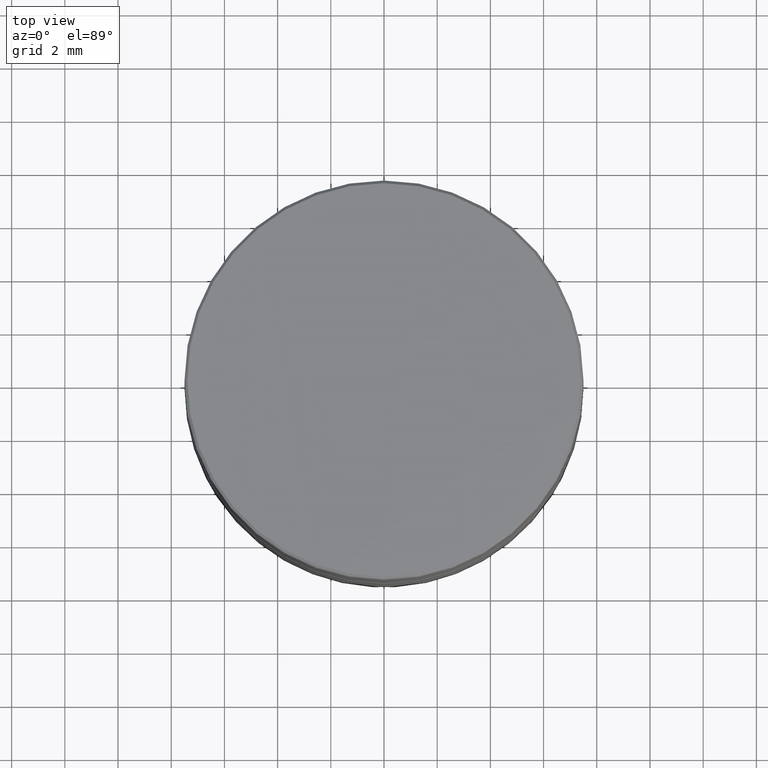
[diagram: clean part render]
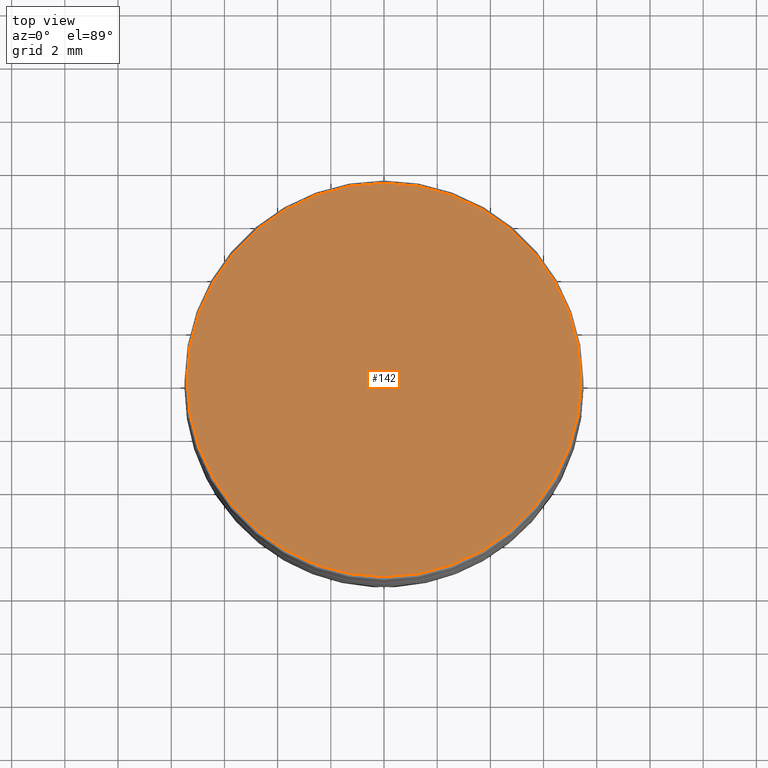
[diagram: same view with one face highlighted and labeled with its STEP entity id]
A machine part, top view. The second image highlights one B-rep face of the part: STEP entity #142.
In plain terms, the highlighted planar face has unit normal (0, -0, 1).
Its self-contained STEP definition (entity closure, byte-faithful):
#53 = CARTESIAN_POINT ( 'NONE',  ( 0.000000000000000000, 0.000000000000000000, 0.000000000000000000 ) ) ;
#88 = AXIS2_PLACEMENT_3D ( 'NONE', #53, #564, #724 ) ;
#96 = CARTESIAN_POINT ( 'NONE',  ( 0.000000000000000000, 0.000000000000000000, 0.000000000000000000 ) ) ;
#119 = DIRECTION ( 'NONE',  ( 1.000000000000000000, 0.000000000000000000, 0.000000000000000000 ) ) ;
#142 = ADVANCED_FACE ( 'NONE', ( #556 ), #162, .T. ) ;
#162 = PLANE ( 'NONE',  #1373 ) ;
#302 = CARTESIAN_POINT ( 'NONE',  ( 0.000000000000000000, 0.000000000000000000, 0.000000000000000000 ) ) ;
#409 = CARTESIAN_POINT ( 'NONE',  ( -7.399999999999994138, 0.000000000000000000, 0.000000000000000000 ) ) ;
#488 = CARTESIAN_POINT ( 'NONE',  ( 7.399999999999994138, 9.123618653647777215E-16, 0.000000000000000000 ) ) ;
#489 = DIRECTION ( 'NONE',  ( -0.000000000000000000, -0.000000000000000000, 1.000000000000000000 ) ) ;
#541 = VERTEX_POINT ( 'NONE', #409 ) ;
#556 = FACE_OUTER_BOUND ( 'NONE', #1114, .T. ) ;
#564 = DIRECTION ( 'NONE',  ( -0.000000000000000000, -0.000000000000000000, 1.000000000000000000 ) ) ;
#723 = CIRCLE ( 'NONE', #1170, 7.399999999999994138 ) ;
#724 = DIRECTION ( 'NONE',  ( 1.000000000000000000, 0.000000000000000000, 0.000000000000000000 ) ) ;
#818 = ORIENTED_EDGE ( 'NONE', *, *, #898, .T. ) ;
#828 = ORIENTED_EDGE ( 'NONE', *, *, #1597, .T. ) ;
#898 = EDGE_CURVE ( 'NONE', #541, #1257, #723, .T. ) ;
#1114 = EDGE_LOOP ( 'NONE', ( #818, #828 ) ) ;
#1170 = AXIS2_PLACEMENT_3D ( 'NONE', #96, #489, #119 ) ;
#1257 = VERTEX_POINT ( 'NONE', #488 ) ;
#1373 = AXIS2_PLACEMENT_3D ( 'NONE', #302, #1437, #1568 ) ;
#1437 = DIRECTION ( 'NONE',  ( 0.000000000000000000, -0.000000000000000000, 1.000000000000000000 ) ) ;
#1515 = CIRCLE ( 'NONE', #88, 7.399999999999994138 ) ;
#1568 = DIRECTION ( 'NONE',  ( 1.000000000000000000, 0.000000000000000000, 0.000000000000000000 ) ) ;
#1597 = EDGE_CURVE ( 'NONE', #1257, #541, #1515, .T. ) ;